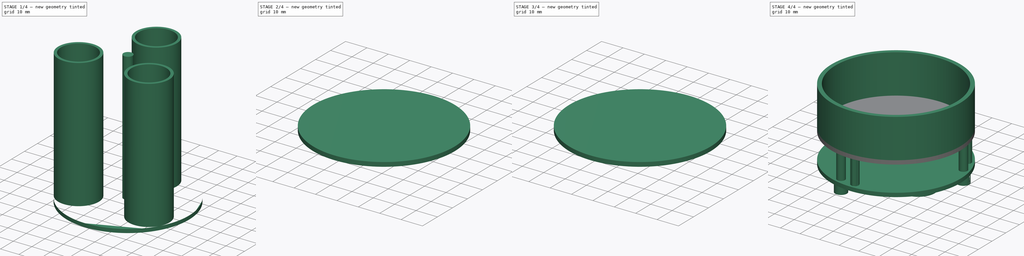
[diagram: build sequence overview — one tinted view per stage of 4, left to right]
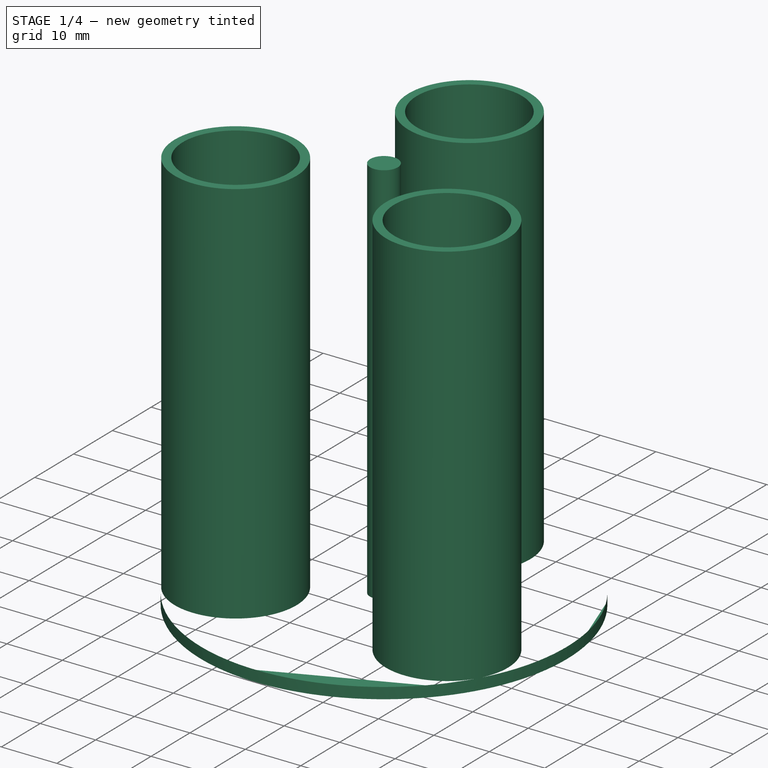
[diagram: stage 1 of 4 — iso view after this stage's code; geometry added in this stage tinted green]
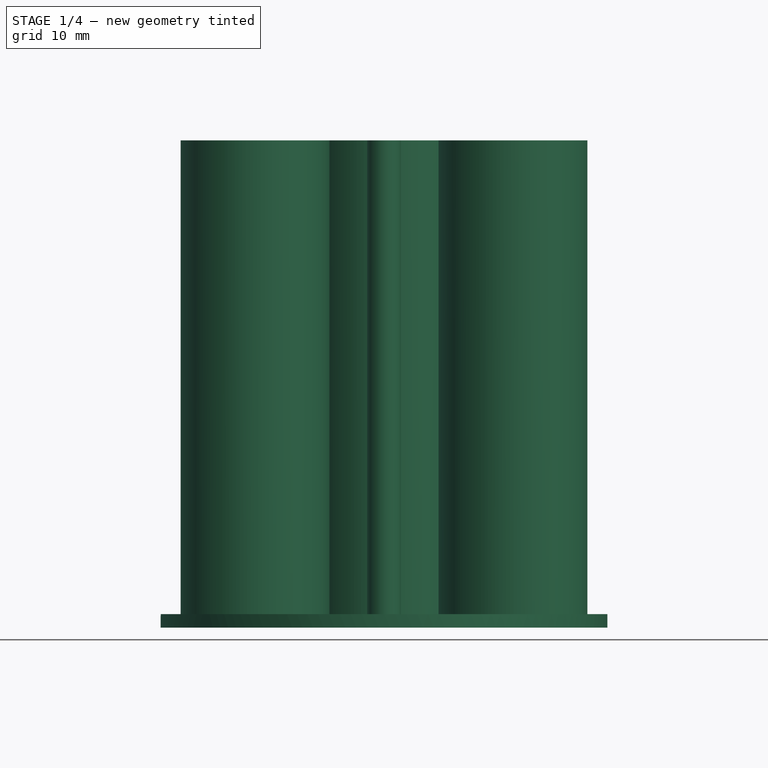
[diagram: stage 1 of 4 — front view after this stage's code; geometry added in this stage tinted green]
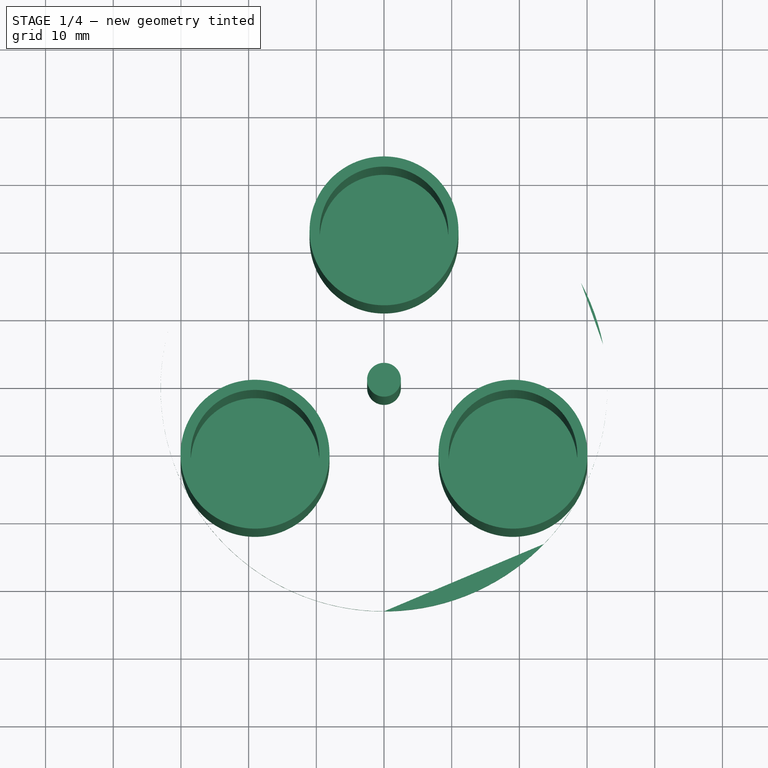
[diagram: stage 1 of 4 — top view after this stage's code; geometry added in this stage tinted green]
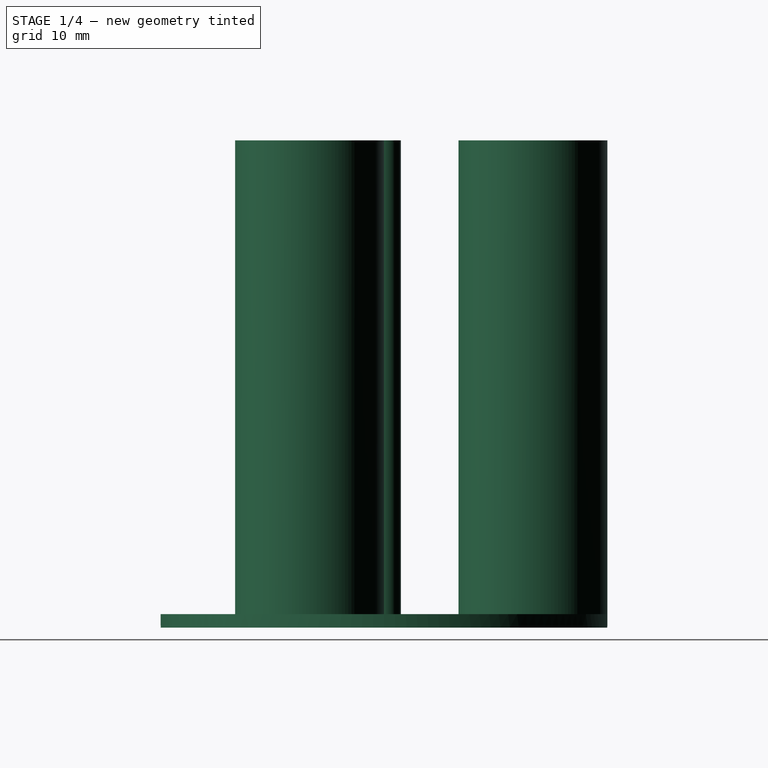
[diagram: stage 1 of 4 — right view after this stage's code; geometry added in this stage tinted green]
FCSTD DOCUMENT  (FreeCAD 0.19R24276 (Git))
Label: Corte_piezas2
License: Creative Commons Attribution-ShareAlike
LicenseURL: http://creativecommons.org/licenses/by-sa/4.0/
objects: Sketcher::SketchObject×9, PartDesign::Pad×9, PartDesign::ShapeBinder×4, PartDesign::Body×3, Spreadsheet::Sheet×1, App::Part×1
note: 34 computed .brp shape members not serialized (recipe doc carries the construction recipe); baked Part::Feature solids carry a one-line shape summary decoded from their .brp

FEATURE [Spreadsheet::Sheet] Spreadsheet  label="Datos"
  cells = A1=Altura; B1(alturaObjeto)=105; A2=Diametro; B2(DiametroTapa)=66; A3=Ancho tapa; B3(grosorTapa)=2; A4=Separacion1; B4(separacion1)=5; A5=Tolerancia; B5(tolerancia)=1; A6=Pila Diámetro; B6(PilaDiametro)=18; A7=Pila Altura; B7(PilaAltura)=65
FEATURE [Sketcher::SketchObject] Sketch  label="tapaInferiorSK"
  FullyConstrained = true
  MapMode = 5
  Support = -> [XY_Plane]
  expr: Constraints[1] = <<Datos>>.DiametroTapa
  sketch-geometry (1):
    g0: Circle CenterX=0 CenterY=0 CenterZ=0 NormalX=0 NormalY=0 NormalZ=1 AngleXU=0 Radius=33
  constraints (2):
    c: Coincident(g0,g-1)
    c: Diameter(g0) = 66
FEATURE [PartDesign::Pad] Pad  label="TapaInferior"
  Direction = (1,1,1)
  Length = 2
  Length2 = 100
  Profile = -> Sketch
  Type = 0
  expr: Length = <<Datos>>.grosorTapa
FEATURE [Sketcher::SketchObject] Sketch001  label="PilasSK"
  ExternalGeometry = -> [Pad]
  FullyConstrained = true
  MapMode = 5
  Placement = pos=(0,0,2) rot=(0,0,1;0rad)
  Support = -> [Pad]
  expr: Constraints[11] = 20 + 2 * <<Datos>>.tolerancia
  expr: Constraints[23] = <<Datos>>.PilaDiametro + <<Datos>>.tolerancia
  sketch-geometry (11):
    g0: Circle CenterX=19.0525 CenterY=-11 CenterZ=0 NormalX=0 NormalY=0 NormalZ=1 AngleXU=0 Radius=11
    g1: LineSegment StartX=-28.5788 StartY=-16.5 StartZ=0 EndX=28.5788 EndY=-16.5 EndZ=0
    g2: LineSegment StartX=28.5788 StartY=-16.5 StartZ=0 EndX=0 EndY=33 EndZ=0
    g3: LineSegment StartX=0 StartY=33 StartZ=0 EndX=-28.5788 EndY=-16.5 EndZ=0
    g4: Circle CenterX=0 CenterY=0 CenterZ=0 NormalX=0 NormalY=0 NormalZ=1 AngleXU=0 Radius=33
    g5: Circle CenterX=-19.0526 CenterY=-11 CenterZ=0 NormalX=0 NormalY=0 NormalZ=1 AngleXU=0 Radius=11
    g6: Circle CenterX=-1.7441e-07 CenterY=22 CenterZ=0 NormalX=0 NormalY=0 NormalZ=1 AngleXU=0 Radius=11
    g7: Circle CenterX=-1.7441e-07 CenterY=22 CenterZ=0 NormalX=0 NormalY=0 NormalZ=1 AngleXU=0 Radius=9.5
    g8: Circle CenterX=-19.0526 CenterY=-11 CenterZ=0 NormalX=0 NormalY=0 NormalZ=1 AngleXU=0 Radius=9.5
    g9: Circle CenterX=19.0525 CenterY=-11 CenterZ=0 NormalX=0 NormalY=0 NormalZ=1 AngleXU=0 Radius=9.5
    g10: Circle CenterX=0 CenterY=0 CenterZ=0 NormalX=0 NormalY=0 NormalZ=1 AngleXU=0 Radius=2.5
  constraints (28):
    c: Coincident(g1,g2)
    c: Coincident(g2,g3)
    c: Coincident(g3,g1)
    c: Equal(g1,g2)
    c: Equal(g1,g3)
    c: PointOnObject(g1,g4)
    c: PointOnObject(g2,g4)
    c: PointOnObject(g3,g4)
    c: PointOnObject(g2,g-3)
    c: Coincident(g4,g-1)
    c: PointOnObject(g2,g-2)
    c: Diameter(g0) = 22
    c: PointOnObject(g1,g0)
    c: Tangent(g0,g4)
    c: Equal(g0,g5) = 22
    c: PointOnObject(g1,g5)
    c: Tangent(g5,g-3)
    c: Diameter(g6) = 22
    c: PointOnObject(g2,g6)
    c: Tangent(g6,g4)
    c: Coincident(g7,g6)
    c: Coincident(g8,g5)
    c: Coincident(g9,g0)
    c: Diameter(g7) = 19
    c: Equal(g9,g7)
    c: Equal(g8,g7)
    c: Coincident(g10,g-1)
    c: Diameter(g10) = 5
FEATURE [PartDesign::Pad] Pad001  label="EstructuraPilas"
  BaseFeature = -> Pad
  Direction = (1,1,1)
  Length = 70
  Length2 = 100
  Profile = -> Sketch001
  Type = 0
  expr: Length = <<Datos>>.PilaAltura + <<Datos>>.separacion1
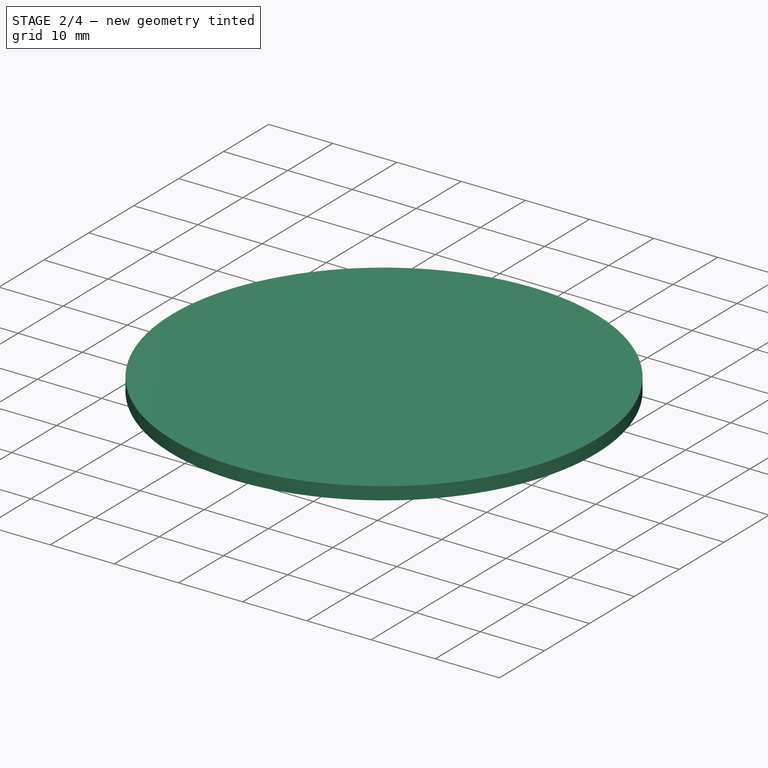
[diagram: stage 2 of 4 — iso view after this stage's code; geometry added in this stage tinted green]
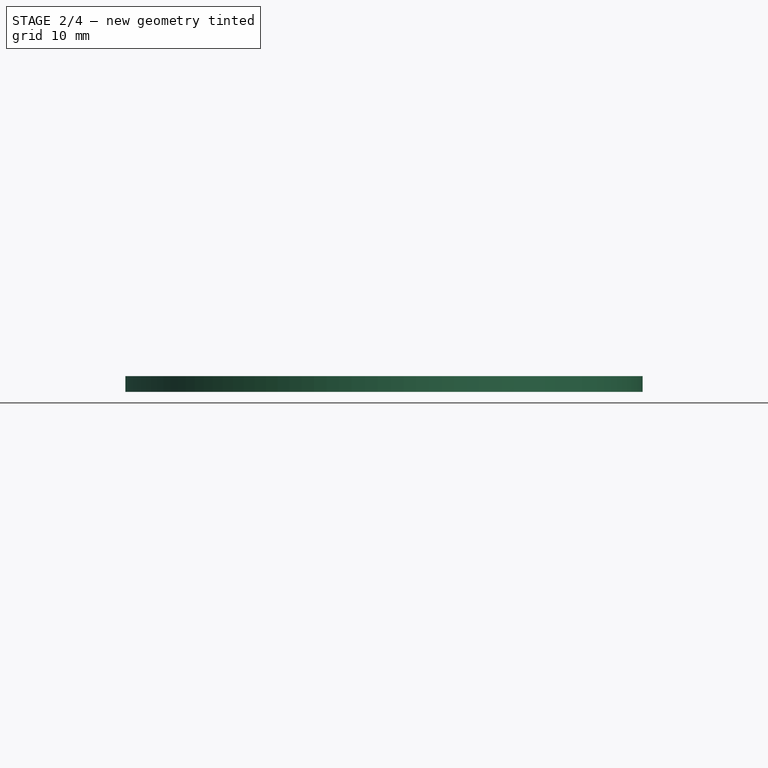
[diagram: stage 2 of 4 — front view after this stage's code; geometry added in this stage tinted green]
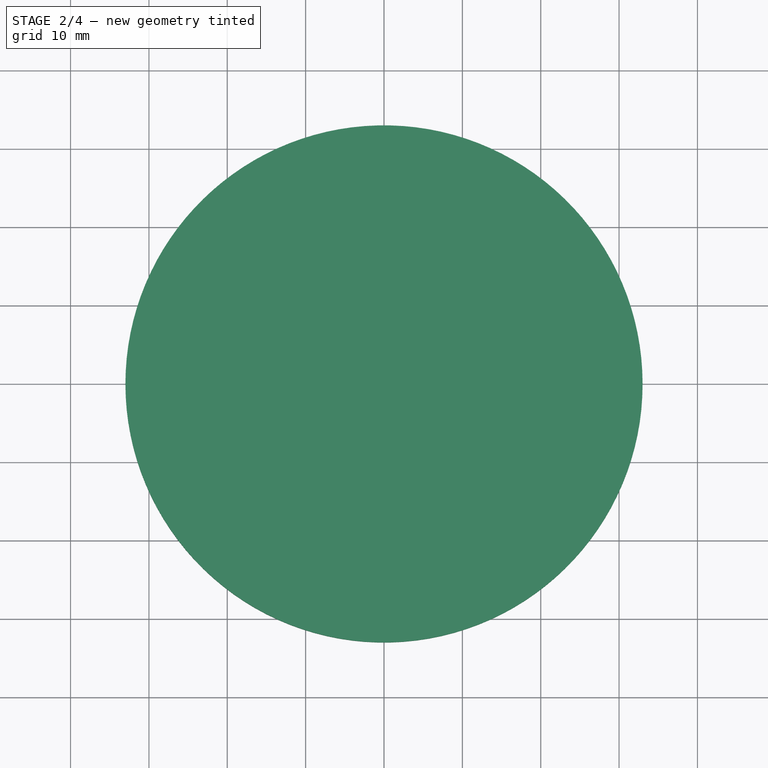
[diagram: stage 2 of 4 — top view after this stage's code; geometry added in this stage tinted green]
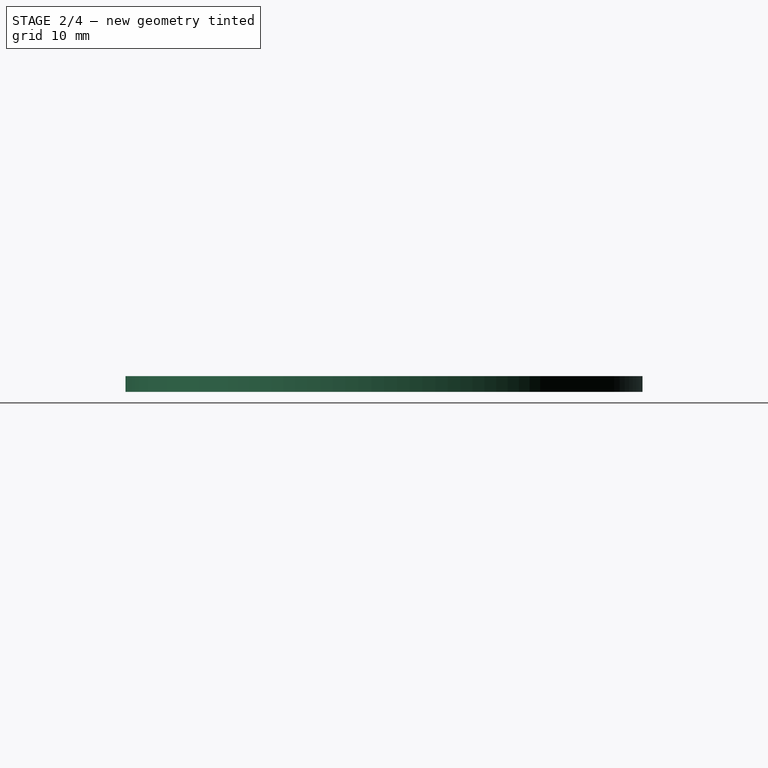
[diagram: stage 2 of 4 — right view after this stage's code; geometry added in this stage tinted green]
FEATURE [Sketcher::SketchObject] Sketch002  label="PasantesSK"
  ExternalGeometry = -> [Pad]
  FullyConstrained = true
  MapMode = 5
  Placement = pos=(0,0,2) rot=(0,0,1;0rad)
  Support = -> [Pad]
  sketch-geometry (6):
    g0: LineSegment StartX=0 StartY=0 StartZ=0 EndX=31.8756 EndY=8.54103 EndZ=0
    g1: LineSegment StartX=0 StartY=0 StartZ=0 EndX=-23.3345 EndY=23.3345 EndZ=0
    g2: LineSegment StartX=0 StartY=0 StartZ=0 EndX=-8.54103 EndY=-31.8756 EndZ=0
    g3: Circle CenterX=28.9778 CenterY=7.76457 CenterZ=0 NormalX=0 NormalY=0 NormalZ=1 AngleXU=0 Radius=2
    g4: Circle CenterX=-21.2132 CenterY=21.2132 CenterZ=0 NormalX=0 NormalY=0 NormalZ=1 AngleXU=0 Radius=2
    g5: Circle CenterX=-7.76457 CenterY=-28.9778 CenterZ=0 NormalX=0 NormalY=0 NormalZ=1 AngleXU=0 Radius=2
  constraints (18):
    c: Coincident(g0,g-1)
    c: PointOnObject(g0,g-3)
    c: Coincident(g1,g-1)
    c: PointOnObject(g1,g-3)
    c: Coincident(g2,g-1)
    c: PointOnObject(g2,g-3)
    c: Angle(g-1,g0) = 0.261799
    c: Angle(g0,g1) = 2.0944
    c: Angle(g1,g2) = 2.0944
    c: Diameter(g3) = 4
    c: PointOnObject(g3,g0)
    c: Distance(g3,g0) = 3
    c: Diameter(g4) = 4
    c: PointOnObject(g4,g1)
    c: Diameter(g5) = 4
    c: PointOnObject(g5,g2)
    c: Distance(g5,g2) = 3
    c: Distance(g1,g4) = 3
FEATURE [PartDesign::Pad] Pad002  label="Pasantes"
  BaseFeature = -> Pad001
  Direction = (1,1,1)
  Length = 70
  Length2 = 100
  Profile = -> Sketch002
  Type = 0
  expr: Length = <<EstructuraPilas>>.Length
FEATURE [PartDesign::Body] Body  label="Estructura_Inferior"
  Group = -> [Sketch,Pad,Sketch001,Pad001,Sketch002,Pad002]
  Origin = -> Origin
  Tip = -> Pad002
FEATURE [PartDesign::ShapeBinder] ShapeBinder  label="Para_tapa_central"
  Placement = pos=(0,0,70) rot=(0,0,1;0rad)
  Support = -> [Pad002]
  TraceSupport = false
FEATURE [Sketcher::SketchObject] Sketch003  label="tapa_central_SK"
  FullyConstrained = true
  MapMode = 5
  Placement = pos=(0,0,72) rot=(0,0,1;0rad)
  Support = -> [ShapeBinder]
  sketch-geometry (1):
    g0: Circle CenterX=0 CenterY=0 CenterZ=0 NormalX=0 NormalY=0 NormalZ=1 AngleXU=0 Radius=33
  constraints (2):
    c: Coincident(g0,g-1)
    c: Diameter(g0) = 66
FEATURE [PartDesign::Pad] Pad003  label="tapa_central"
  Direction = (1,1,1)
  Length = 2
  Length2 = 100
  Placement = pos=(0,0,70) rot=(0,0,1;0rad)
  Profile = -> Sketch003
  Type = 0
  expr: Length = <<Datos>>.grosorTapa
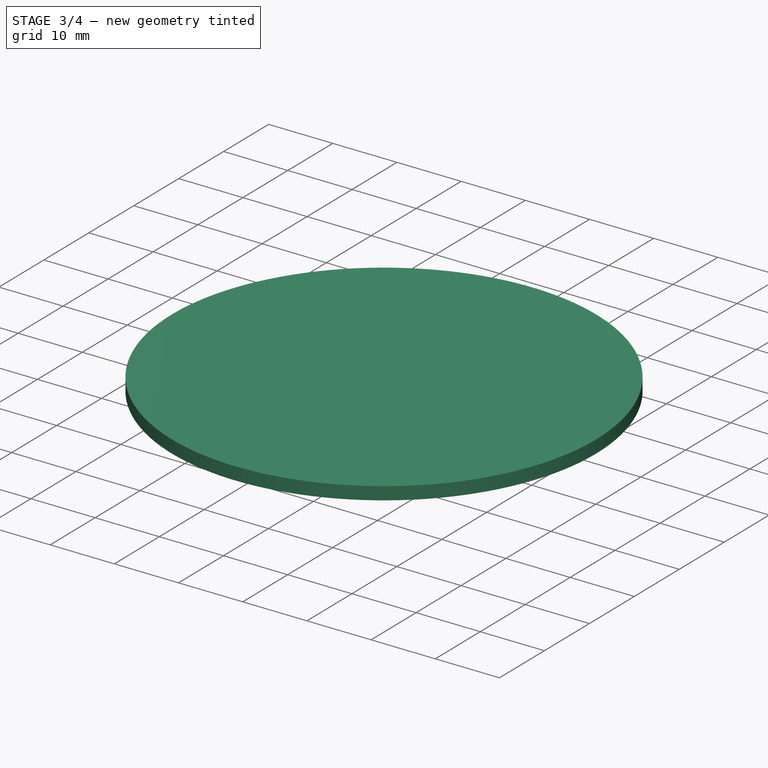
[diagram: stage 3 of 4 — iso view after this stage's code; geometry added in this stage tinted green]
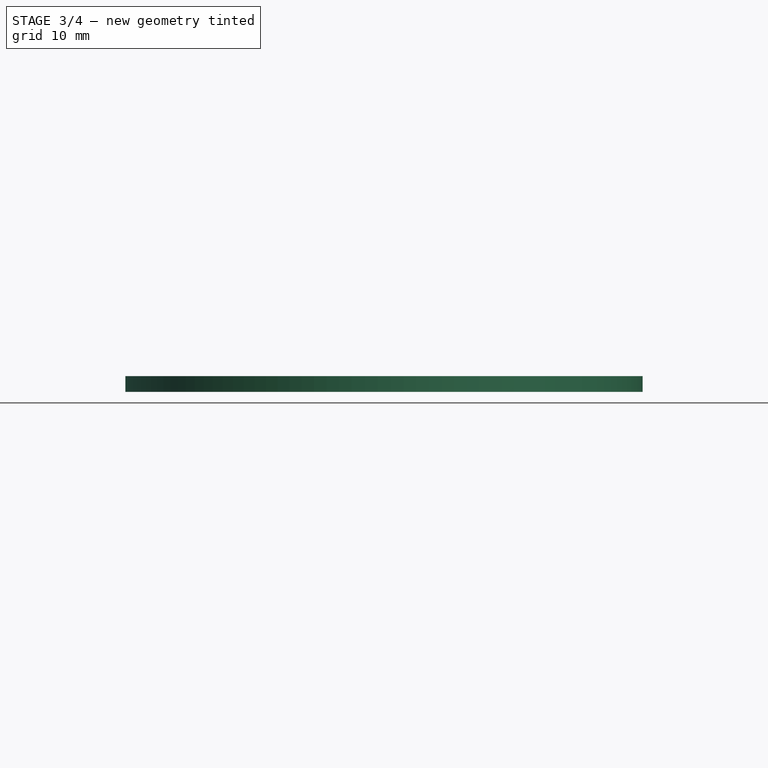
[diagram: stage 3 of 4 — front view after this stage's code; geometry added in this stage tinted green]
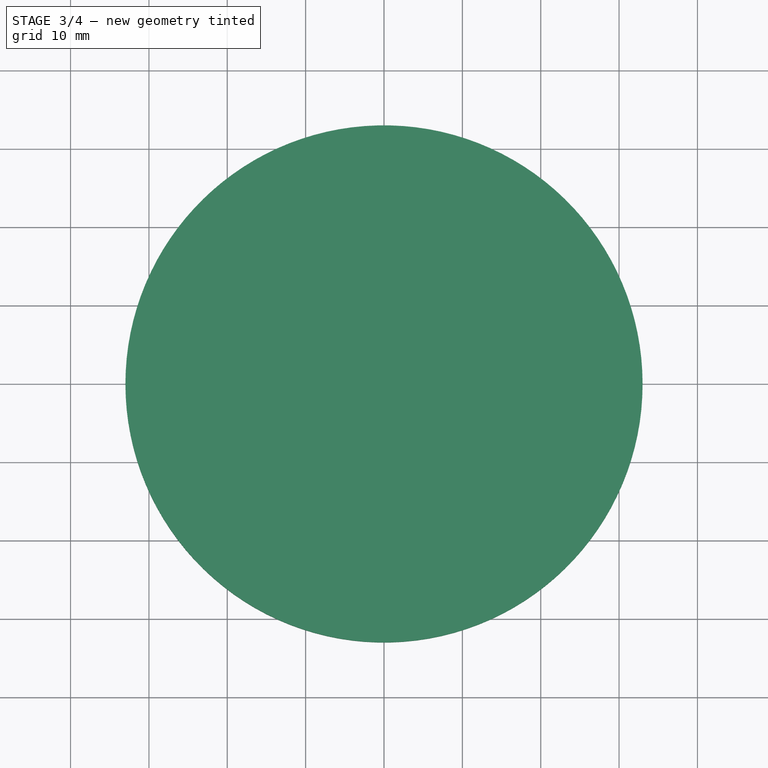
[diagram: stage 3 of 4 — top view after this stage's code; geometry added in this stage tinted green]
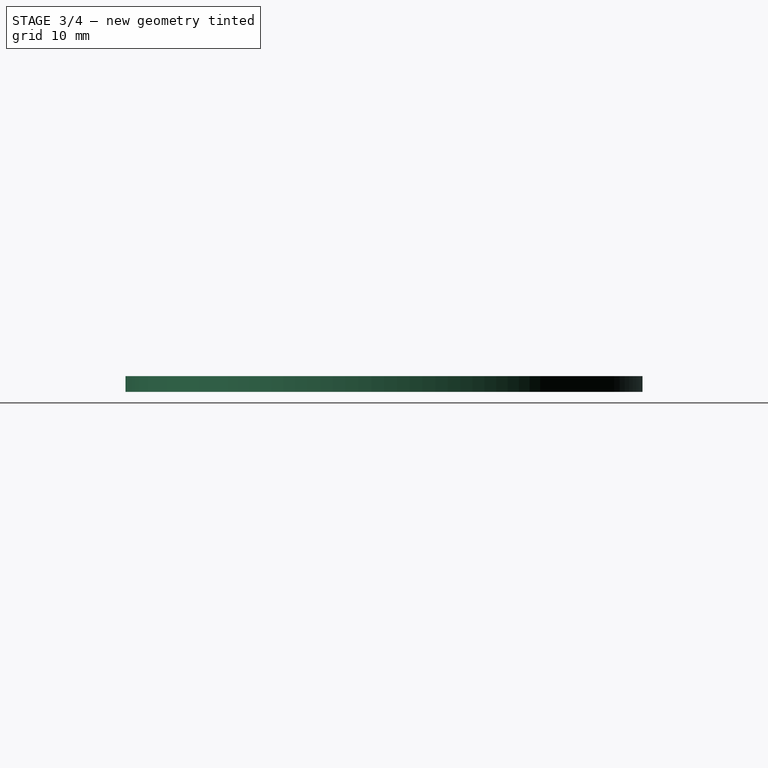
[diagram: stage 3 of 4 — right view after this stage's code; geometry added in this stage tinted green]
FEATURE [PartDesign::ShapeBinder] ShapeBinder001  label="Tapando_Pilas"
  Placement = pos=(0,0,70) rot=(0,0,1;0rad)
  Support = -> [Pad002]
  TraceSupport = false
FEATURE [Sketcher::SketchObject] Sketch004  label="tapando_PilasSK"
  ExternalGeometry = -> [ShapeBinder001]
  FullyConstrained = true
  MapMode = 5
  Placement = pos=(0,0,72) rot=(0,0,1;0rad)
  Support = -> [ShapeBinder001]
  expr: Constraints[3] = <<Datos>>.PilaDiametro - <<Datos>>.tolerancia
  sketch-geometry (6):
    g0: Circle CenterX=0 CenterY=0 CenterZ=0 NormalX=0 NormalY=0 NormalZ=1 AngleXU=0 Radius=33
    g1: Circle CenterX=-19.0526 CenterY=-11 CenterZ=0 NormalX=0 NormalY=0 NormalZ=1 AngleXU=0 Radius=8.5
    g2: Circle CenterX=0 CenterY=22 CenterZ=0 NormalX=0 NormalY=0 NormalZ=1 AngleXU=0 Radius=8.5
    g3: Circle CenterX=19.0526 CenterY=-11 CenterZ=0 NormalX=0 NormalY=0 NormalZ=1 AngleXU=0 Radius=8.5
    g4: LineSegment StartX=-19.0526 StartY=-11 StartZ=0 EndX=0 EndY=0 EndZ=0
    g5: Circle CenterX=0 CenterY=0 CenterZ=0 NormalX=0 NormalY=0 NormalZ=1 AngleXU=0 Radius=22
  constraints (13):
    c: Coincident(g0,g-1)
    c: Diameter(g0) = 66
    c: Coincident(g1,g-3)
    c: Diameter(g1) = 17
    c: Diameter(g2) = 17
    c: PointOnObject(g2,g-2)
    c: Diameter(g3) = 17
    c: Symmetric(g3,g1,g-2)
    c: Coincident(g4,g1)
    c: Coincident(g4,g-1)
    c: Coincident(g5,g-1)
    c: PointOnObject(g1,g5)
    c: PointOnObject(g2,g5)
FEATURE [PartDesign::Pad] Pad004  label="Tapando_Pilas001"
  BaseFeature = -> Pad003
  Direction = (1,1,1)
  Length = 2
  Length2 = 100
  Placement = pos=(0,0,70) rot=(0,0,1;0rad)
  Profile = -> Sketch004
  Reversed = true
  Type = 0
FEATURE [PartDesign::ShapeBinder] ShapeBinder002  label="Pilares_estructura_central"
  Placement = pos=(0,0,70) rot=(0,0,1;0rad)
  Support = -> [Pad002]
  TraceSupport = false
FEATURE [Sketcher::SketchObject] Sketch005  label="Pilares_estructura_centralSK"
  ExternalGeometry = -> [ShapeBinder002]
  FullyConstrained = true
  MapMode = 5
  Placement = pos=(0,0,72) rot=(0,0,1;0rad)
  Support = -> [ShapeBinder002]
  expr: Constraints[19] = <<Datos>>.separacion1
  sketch-geometry (38):
    g0: Circle CenterX=-7.76457 CenterY=-28.9778 CenterZ=0 NormalX=0 NormalY=0 NormalZ=1 AngleXU=0 Radius=2
    g1: Circle CenterX=0 CenterY=0 CenterZ=0 NormalX=0 NormalY=0 NormalZ=1 AngleXU=0 Radius=33
    g2: LineSegment StartX=-7.76457 StartY=-28.9778 StartZ=0 EndX=0 EndY=0 EndZ=0
    g3: Circle CenterX=0 CenterY=0 CenterZ=0 NormalX=0 NormalY=0 NormalZ=1 AngleXU=0 Radius=30
    g4: LineSegment StartX=0 StartY=0 StartZ=0 EndX=28.9778 EndY=7.76457 EndZ=0
    g5: LineSegment StartX=0 StartY=0 StartZ=0 EndX=-21.2132 EndY=21.2132 EndZ=0
    g6: Circle CenterX=28.9778 CenterY=7.76457 CenterZ=0 NormalX=0 NormalY=0 NormalZ=1 AngleXU=0 Radius=2
    g7: Circle CenterX=-21.2132 CenterY=21.2132 CenterZ=0 NormalX=0 NormalY=0 NormalZ=1 AngleXU=0 Radius=2
    g8: Circle CenterX=0 CenterY=0 CenterZ=0 NormalX=0 NormalY=0 NormalZ=1 AngleXU=0 Radius=2.5
    g9: LineSegment StartX=1.36629 StartY=-28.5394 StartZ=0 EndX=-0.0666667 EndY=-28.0011 EndZ=0
    g10: LineSegment StartX=-0.0666667 StartY=-28.0011 StartZ=0 EndX=-1.46057 EndY=-28.6337 EndZ=0
    g11: LineSegment StartX=-1.46057 StartY=-28.6337 StartZ=0 EndX=-1.99889 EndY=-30.0667 EndZ=0
    g12: LineSegment StartX=-1.99889 StartY=-30.0667 StartZ=0 EndX=-1.36629 EndY=-31.4606 EndZ=0
    g13: LineSegment StartX=-1.36629 StartY=-31.4606 StartZ=0 EndX=0.0666667 EndY=-31.9989 EndZ=0
    g14: LineSegment StartX=0.0666667 StartY=-31.9989 StartZ=0 EndX=1.46057 EndY=-31.3663 EndZ=0
    g15: LineSegment StartX=1.46057 StartY=-31.3663 StartZ=0 EndX=1.99889 EndY=-29.9333 EndZ=0
    g16: LineSegment StartX=1.99889 StartY=-29.9333 StartZ=0 EndX=1.36629 EndY=-28.5394 EndZ=0
    g17: Circle CenterX=0 CenterY=-30 CenterZ=0 NormalX=0 NormalY=0 NormalZ=1 AngleXU=0 Radius=2
    g18: LineSegment StartX=27.7452 StartY=15.9417 StartZ=0 EndX=26.5625 EndY=16.9135 EndZ=0
    g19: LineSegment StartX=26.5625 StartY=16.9135 StartZ=0 EndX=25.0391 EndY=16.7644 EndZ=0
    g20: LineSegment StartX=25.0391 StartY=16.7644 StartZ=0 EndX=24.0672 EndY=15.5817 EndZ=0
    g21: LineSegment StartX=24.0672 StartY=15.5817 StartZ=0 EndX=24.2163 EndY=14.0583 EndZ=0
    g22: LineSegment StartX=24.2163 StartY=14.0583 StartZ=0 EndX=25.399 EndY=13.0865 EndZ=0
    g23: LineSegment StartX=25.399 StartY=13.0865 StartZ=0 EndX=26.9225 EndY=13.2356 EndZ=0
    g24: LineSegment StartX=26.9225 StartY=13.2356 StartZ=0 EndX=27.8943 EndY=14.4183 EndZ=0
    g25: LineSegment StartX=27.8943 StartY=14.4183 StartZ=0 EndX=27.7452 EndY=15.9417 EndZ=0
    g26: Circle CenterX=25.9808 CenterY=15 CenterZ=0 NormalX=0 NormalY=0 NormalZ=1 AngleXU=0 Radius=2
    g27: LineSegment StartX=-24.0672 StartY=15.5817 StartZ=0 EndX=-25.0391 EndY=16.7644 EndZ=0
    g28: LineSegment StartX=-25.0391 StartY=16.7644 StartZ=0 EndX=-26.5625 EndY=16.9135 EndZ=0
    g29: LineSegment StartX=-26.5625 StartY=16.9135 StartZ=0 EndX=-27.7452 EndY=15.9417 EndZ=0
    g30: LineSegment StartX=-27.7452 StartY=15.9417 StartZ=0 EndX=-27.8943 EndY=14.4183 EndZ=0
    g31: LineSegment StartX=-27.8943 StartY=14.4183 StartZ=0 EndX=-26.9225 EndY=13.2356 EndZ=0
    g32: LineSegment StartX=-26.9225 StartY=13.2356 StartZ=0 EndX=-25.399 EndY=13.0865 EndZ=0
    g33: LineSegment StartX=-25.399 StartY=13.0865 StartZ=0 EndX=-24.2163 EndY=14.0583 EndZ=0
    g34: LineSegment StartX=-24.2163 StartY=14.0583 StartZ=0 EndX=-24.0672 EndY=15.5817 EndZ=0
    g35: Circle CenterX=-25.9808 CenterY=15 CenterZ=0 NormalX=0 NormalY=0 NormalZ=1 AngleXU=0 Radius=2
    g36: LineSegment StartX=0 StartY=0 StartZ=0 EndX=25.9808 EndY=15 EndZ=0
    g37: LineSegment StartX=0 StartY=0 StartZ=0 EndX=-25.9808 EndY=15 EndZ=0
  constraints (87):
    c: Coincident(g0,g-4)
    c: PointOnObject(g-3,g0)
    c: Coincident(g1,g-1)
    c: Diameter(g1) = 66
    c: Coincident(g2,g0)
    c: Coincident(g2,g1)
    c: Coincident(g3,g1)
    c: PointOnObject(g0,g3)
    c: Coincident(g4,g1)
    c: PointOnObject(g4,g3)
    c: Coincident(g5,g1)
    c: PointOnObject(g5,g3)
    c: Angle(g2,g4) = 2.0944
    c: Angle(g4,g5) = 2.0944
    c: Coincident(g6,g4)
    c: Coincident(g7,g5)
    c: Equal(g0,g6)
    c: Equal(g7,g6)
    c: Coincident(g8,g1)
    c: Diameter(g8) = 5
    c: Coincident(g9,g10)
    c: Coincident(g10,g11)
    c: Coincident(g11,g12)
    c: Coincident(g12,g13)
    c: Coincident(g13,g14)
    c: Coincident(g14,g15)
    c: Coincident(g15,g16)
    c: Coincident(g16,g9)
    c: Equal(g9, g10-g16) x7
    c: PointOnObject(g9,g17)
    c: PointOnObject(g10,g17)
    c: PointOnObject(g11,g17)
    c: PointOnObject(g12,g17)
    c: PointOnObject(g13,g17)
    c: PointOnObject(g14,g17)
    c: PointOnObject(g15,g17)
    c: PointOnObject(g16,g17)
    c: PointOnObject(g17,g3)
    c: PointOnObject(g17,g-2)
    c: PointOnObject(g15,g3)
    c: Equal(g17,g0)
    c: Coincident(g18,g19)
    c: Coincident(g19,g20)
    c: Coincident(g20,g21)
    c: Coincident(g21,g22)
    c: Coincident(g22,g23)
    c: Coincident(g23,g24)
    c: Coincident(g24,g25)
    c: Coincident(g25,g18)
    c: Equal(g18, g19-g25) x7
    c: PointOnObject(g18,g26)
    c: PointOnObject(g19,g26)
    c: PointOnObject(g20,g26)
    c: PointOnObject(g21,g26)
    c: PointOnObject(g22,g26)
    c: PointOnObject(g23,g26)
    c: PointOnObject(g24,g26)
    c: PointOnObject(g25,g26)
    c: PointOnObject(g26,g3)
    c: Coincident(g27,g28)
    c: Coincident(g28,g29)
    c: Coincident(g29,g30)
    c: Coincident(g30,g31)
    c: Coincident(g31,g32)
    c: Coincident(g32,g33)
    c: Coincident(g33,g34)
    c: Coincident(g34,g27)
    c: Equal(g27, g28-g34) x7
    c: PointOnObject(g27,g35)
    c: PointOnObject(g28,g35)
    c: PointOnObject(g29,g35)
    c: PointOnObject(g30,g35)
    c: PointOnObject(g31,g35)
    c: PointOnObject(g32,g35)
    c: PointOnObject(g33,g35)
    c: PointOnObject(g34,g35)
    c: PointOnObject(g35,g3)
    c: Coincident(g36,g1)
    c: Coincident(g36,g26)
    c: Coincident(g37,g1)
    c: Coincident(g37,g35)
    c: Angle(g4,g36) = 0.261799
    c: Angle(g5,g37) = 0.261799
    c: Equal(g17,g26)
    c: Equal(g35,g26)
    c: PointOnObject(g23,g3)
    c: PointOnObject(g31,g3)
FEATURE [PartDesign::Pad] Pad005  label="Pilares_estructura_central001"
  BaseFeature = -> Pad004
  Direction = (1,1,1)
  Length = 15
  Length2 = 100
  Placement = pos=(0,0,70) rot=(0,0,1;0rad)
  Profile = -> Sketch005
  Type = 0
FEATURE [PartDesign::ShapeBinder] ShapeBinder003  label="tapa_SuperiorSB"
  Placement = pos=(0,0,15) rot=(0,0,1;0rad)
  Support = -> [Pad005]
  TraceSupport = false
FEATURE [Sketcher::SketchObject] Sketch006  label="tapa_superior_SK"
  FullyConstrained = true
  MapMode = 5
  Placement = pos=(0,0,87) rot=(0,0,1;0rad)
  Support = -> [ShapeBinder003]
  sketch-geometry (1):
    g0: Circle CenterX=0 CenterY=0 CenterZ=0 NormalX=0 NormalY=0 NormalZ=1 AngleXU=0 Radius=33
  constraints (2):
    c: Coincident(g0,g-1)
    c: Diameter(g0) = 66
FEATURE [PartDesign::Pad] Pad006  label="tapa_Superior"
  Direction = (1,1,1)
  Length = 2
  Length2 = 100
  Placement = pos=(0,0,15) rot=(0,0,1;0rad)
  Profile = -> Sketch006
  Type = 0
  expr: Length = <<Datos>>.grosorTapa
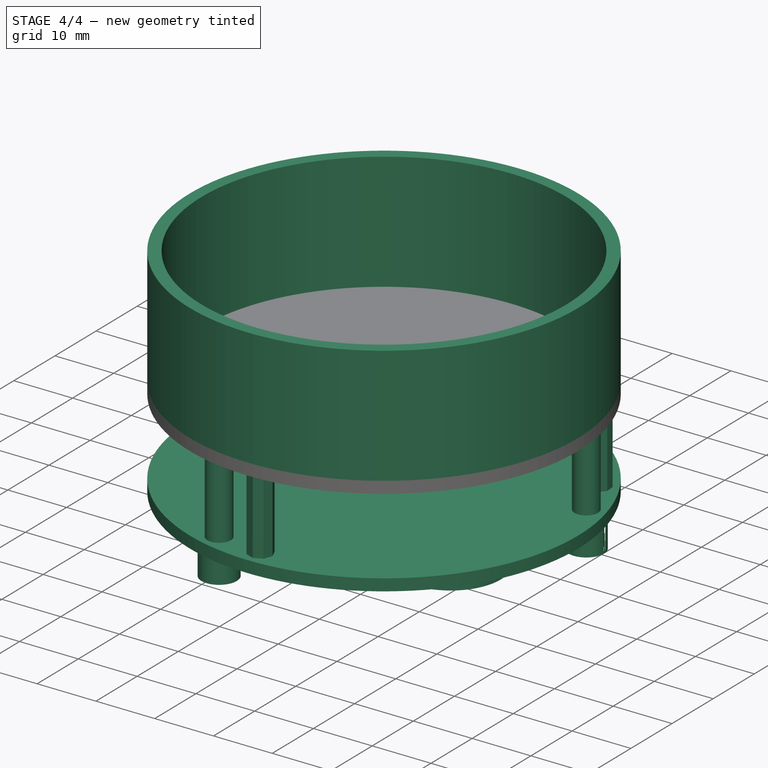
[diagram: stage 4 of 4 — iso view after this stage's code; geometry added in this stage tinted green]
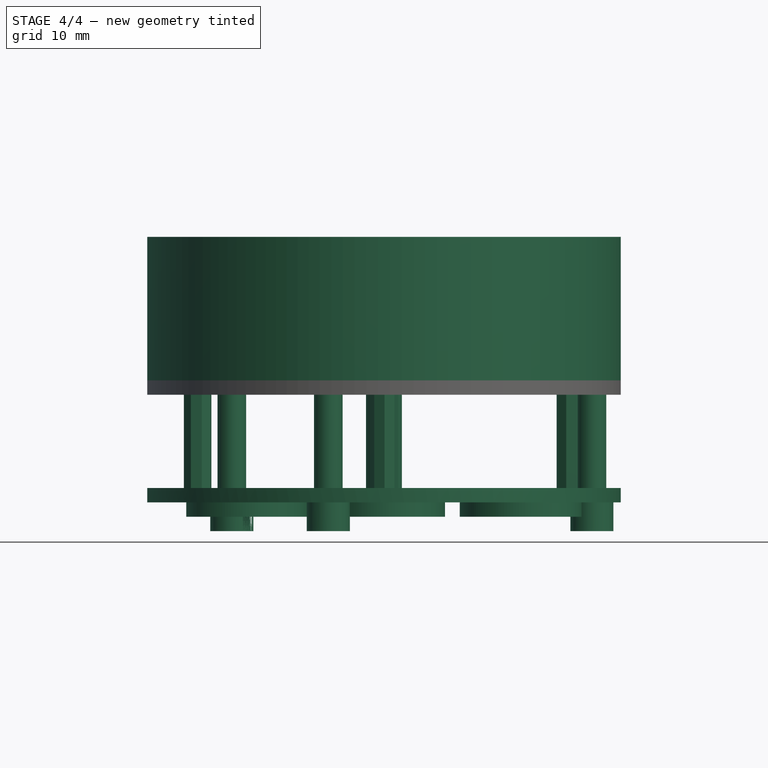
[diagram: stage 4 of 4 — front view after this stage's code; geometry added in this stage tinted green]
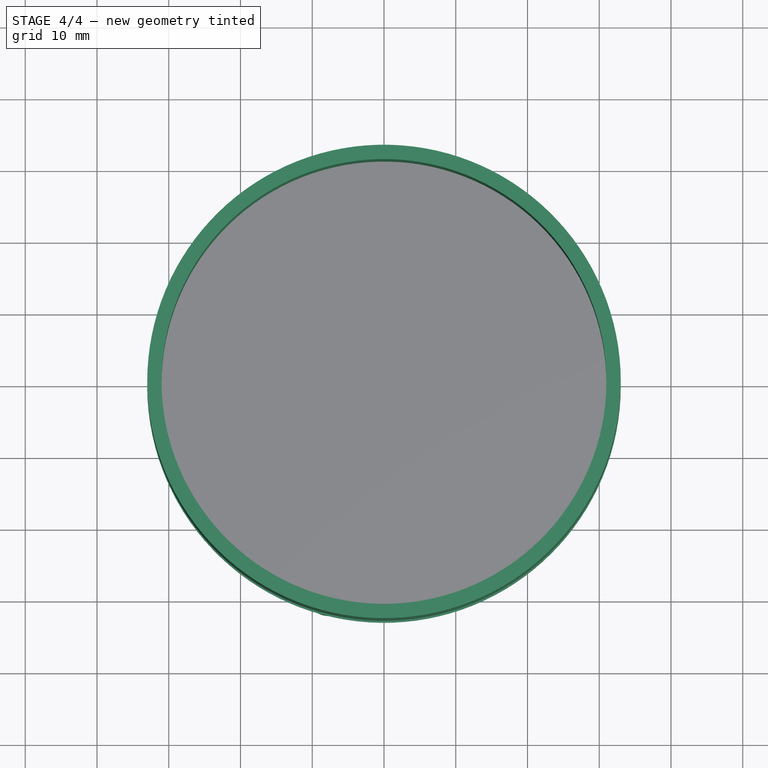
[diagram: stage 4 of 4 — top view after this stage's code; geometry added in this stage tinted green]
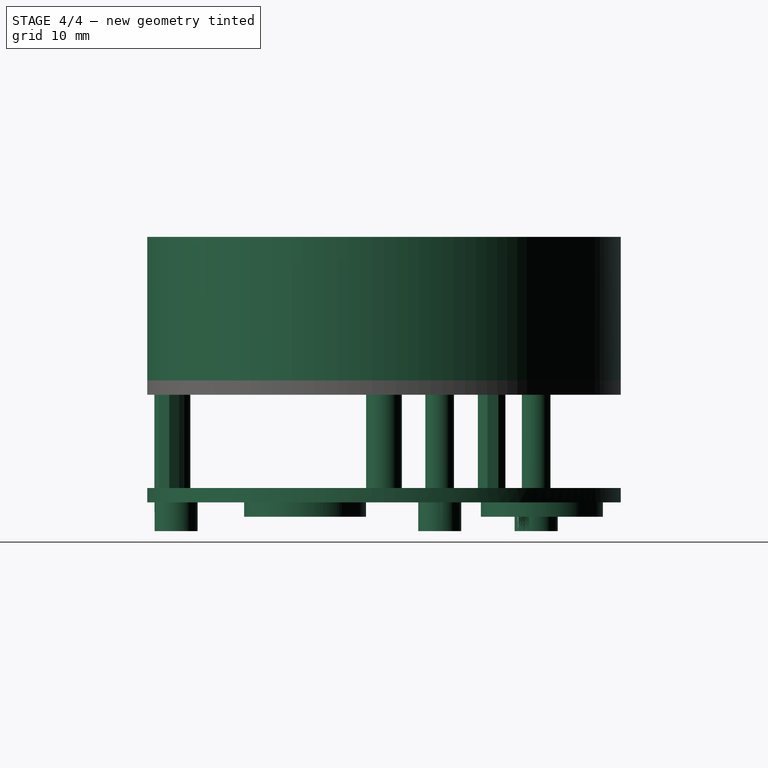
[diagram: stage 4 of 4 — right view after this stage's code; geometry added in this stage tinted green]
FEATURE [Sketcher::SketchObject] Sketch007  label="Encaje de la pieza con la inferiorSL"
  ExternalGeometry = -> [Pad005,ShapeBinder002]
  FullyConstrained = true
  MapMode = 5
  Placement = pos=(0,0,72) rot=(0,0,1;0rad)
  Support = -> [ShapeBinder002]
  sketch-geometry (11):
    g0: Circle CenterX=-7.76457 CenterY=-28.9778 CenterZ=0 NormalX=0 NormalY=0 NormalZ=1 AngleXU=0 Radius=2.5
    g1: Circle CenterX=-7.76457 CenterY=-28.9778 CenterZ=0 NormalX=0 NormalY=0 NormalZ=1 AngleXU=0 Radius=3
    g2: Circle CenterX=1.54e-14 CenterY=0 CenterZ=0 NormalX=0 NormalY=0 NormalZ=1 AngleXU=0 Radius=33
    g3: LineSegment StartX=0 StartY=0 StartZ=0 EndX=-7.76457 EndY=-28.9778 EndZ=0
    g4: LineSegment StartX=0 StartY=0 StartZ=0 EndX=-23.3345 EndY=23.3345 EndZ=0
    g5: LineSegment StartX=0 StartY=0 StartZ=0 EndX=31.8756 EndY=8.54103 EndZ=0
    g6: Circle CenterX=0 CenterY=0 CenterZ=0 NormalX=0 NormalY=0 NormalZ=1 AngleXU=0 Radius=30
    g7: Circle CenterX=-21.2132 CenterY=21.2132 CenterZ=0 NormalX=0 NormalY=0 NormalZ=1 AngleXU=0 Radius=2.5
    g8: Circle CenterX=-21.2132 CenterY=21.2132 CenterZ=0 NormalX=0 NormalY=0 NormalZ=1 AngleXU=0 Radius=3
    g9: Circle CenterX=28.9778 CenterY=7.76457 CenterZ=0 NormalX=0 NormalY=0 NormalZ=1 AngleXU=0 Radius=2.5
    g10: Circle CenterX=28.9778 CenterY=7.76457 CenterZ=0 NormalX=0 NormalY=0 NormalZ=1 AngleXU=0 Radius=3
  constraints (29):
    c: Coincident(g0,g-5)
    c: Coincident(g1,g-4)
    c: PointOnObject(g2,g-1)
    c: Diameter(g2) = 66
    c: Tangent(g2,g1)
    c: Diameter(g1) = 6
    c: Diameter(g0) = 5
    c: Coincident(g3,g-1)
    c: Coincident(g3,g0)
    c: Coincident(g4,g-1)
    c: PointOnObject(g4,g2)
    c: Coincident(g5,g-1)
    c: PointOnObject(g5,g2)
    c: Coincident(g6,g-1)
    c: PointOnObject(g0,g6)
    c: Angle(g4,g3) = 2.0944
    c: Angle(g5,g4) = 2.0944
    c: Diameter(g8) = 6
    c: Diameter(g7) = 5
    c: PointOnObject(g7,g6)
    c: PointOnObject(g7,g4)
    c: PointOnObject(g8,g6)
    c: PointOnObject(g8,g4)
    c: Equal(g8,g10) = 6
    c: Equal(g7,g9) = 5
    c: PointOnObject(g10,g5)
    c: PointOnObject(g10,g6)
    c: PointOnObject(g9,g6)
    c: PointOnObject(g9,g5)
FEATURE [PartDesign::Pad] Pad007  label="Encaje con las piezas inferiores"
  BaseFeature = -> Pad005
  Direction = (1,1,1)
  Length = 4
  Length2 = 100
  Placement = pos=(0,0,70) rot=(0,0,1;0rad)
  Profile = -> Sketch007
  Reversed = true
  Type = 0
FEATURE [PartDesign::Body] Body001  label="Estructura_central"
  Group = -> [ShapeBinder,Sketch003,Pad003,ShapeBinder001,Sketch004,Pad004,ShapeBinder002,Sketch005,Pad005,Sketch007,Pad007]
  Origin = -> Origin001
  Tip = -> Pad007
FEATURE [Sketcher::SketchObject] Sketch008  label="castilleteSK"
  ExternalGeometry = -> [Pad006]
  FullyConstrained = true
  MapMode = 5
  Placement = pos=(0,0,89) rot=(0,0,1;0rad)
  Support = -> [Pad006]
  sketch-geometry (4):
    g0: Circle CenterX=0 CenterY=0 CenterZ=0 NormalX=0 NormalY=0 NormalZ=1 AngleXU=0 Radius=33
    g1: GeomPoint X=33 Y=0 Z=0
    g2: Circle CenterX=0 CenterY=0 CenterZ=0 NormalX=0 NormalY=0 NormalZ=1 AngleXU=0 Radius=31
    g3: LineSegment StartX=33 StartY=0 StartZ=0 EndX=31 EndY=0 EndZ=0
  constraints (9):
    c: Coincident(g0,g-1)
    c: PointOnObject(g1,g0)
    c: PointOnObject(g1,g-3)
    c: Coincident(g2,g0)
    c: PointOnObject(g1,g-1)
    c: Coincident(g3,g1)
    c: PointOnObject(g3,g2)
    c: Horizontal(g3)
    c: DistanceX(g3,g3) = 2
FEATURE [PartDesign::Pad] Pad008  label="castillete"
  BaseFeature = -> Pad006
  Direction = (1,1,1)
  Length = 20
  Length2 = 100
  Placement = pos=(0,0,15) rot=(0,0,1;0rad)
  Profile = -> Sketch008
  Type = 0
FEATURE [PartDesign::Body] Body002  label="Estructura_superior"
  Group = -> [ShapeBinder003,Sketch006,Pad006,Sketch008,Pad008]
  Origin = -> Origin003
  Tip = -> Pad008
FEATURE [App::Part] Part
  Group = -> [Body,Body001,Body002]
  Origin = -> Origin002
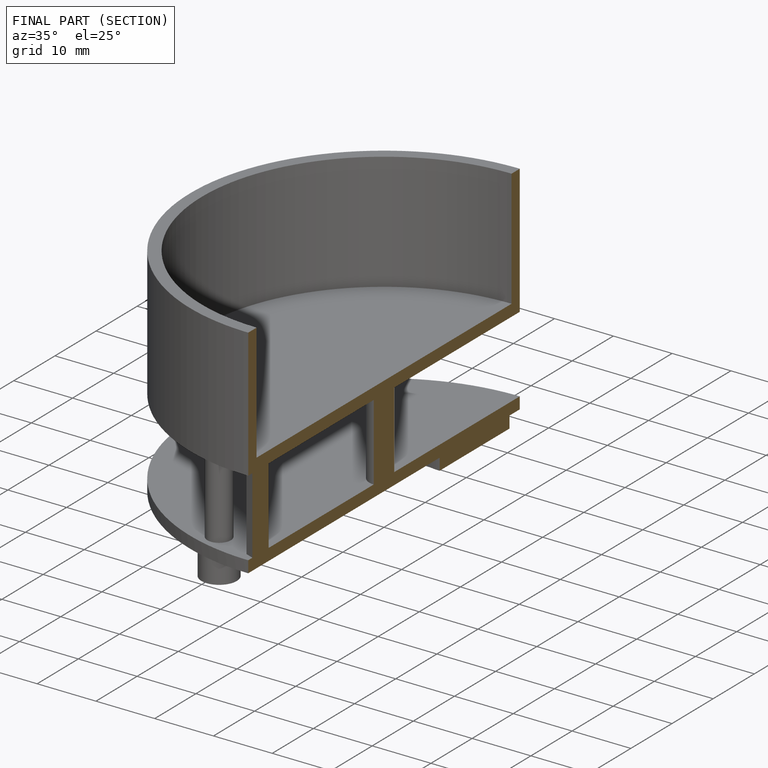
[diagram: finished part — half-section view (interior)]
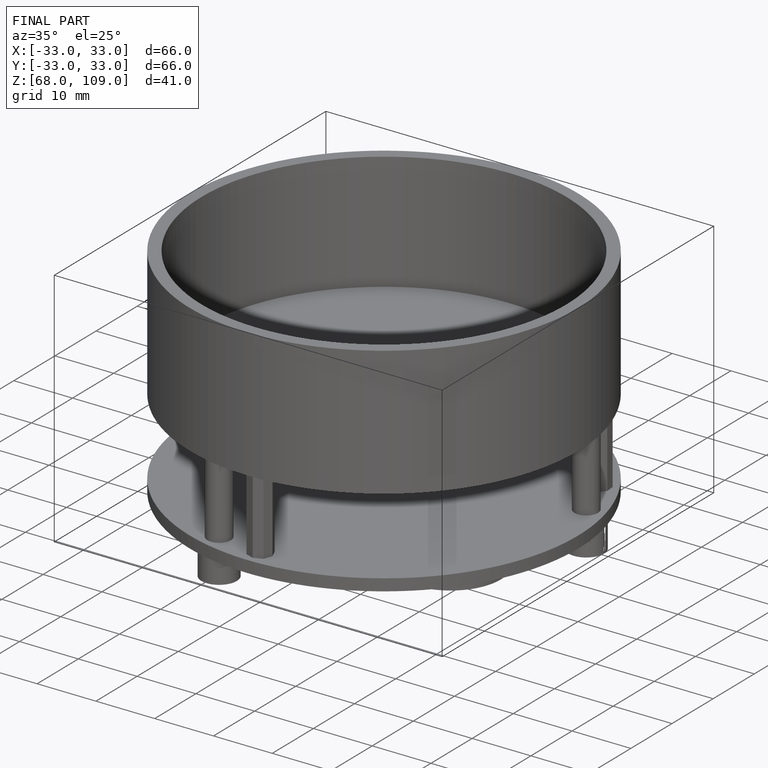
[diagram: finished part — iso view with bounding-box wireframe]
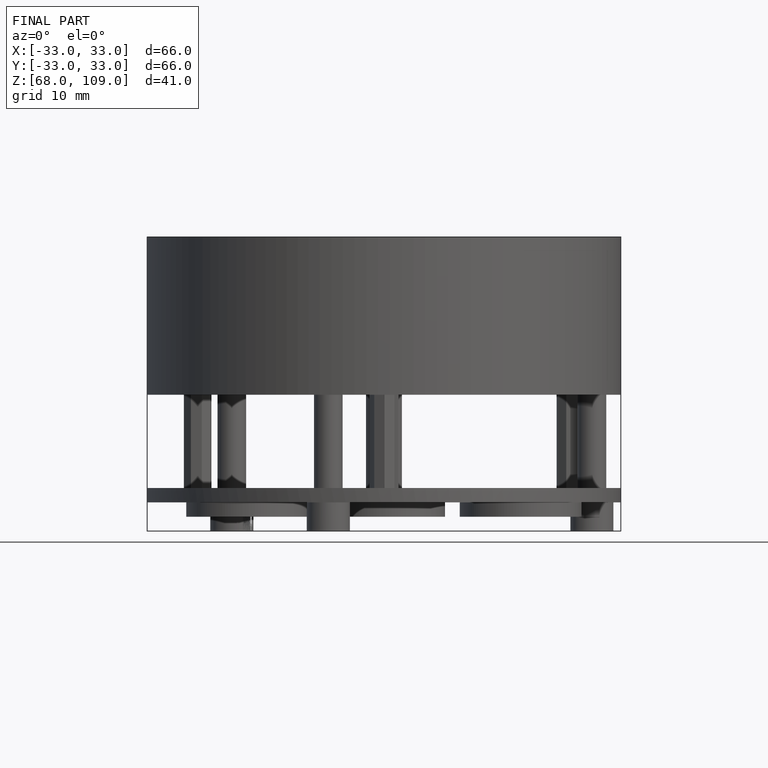
[diagram: finished part — front view with bounding-box wireframe]
